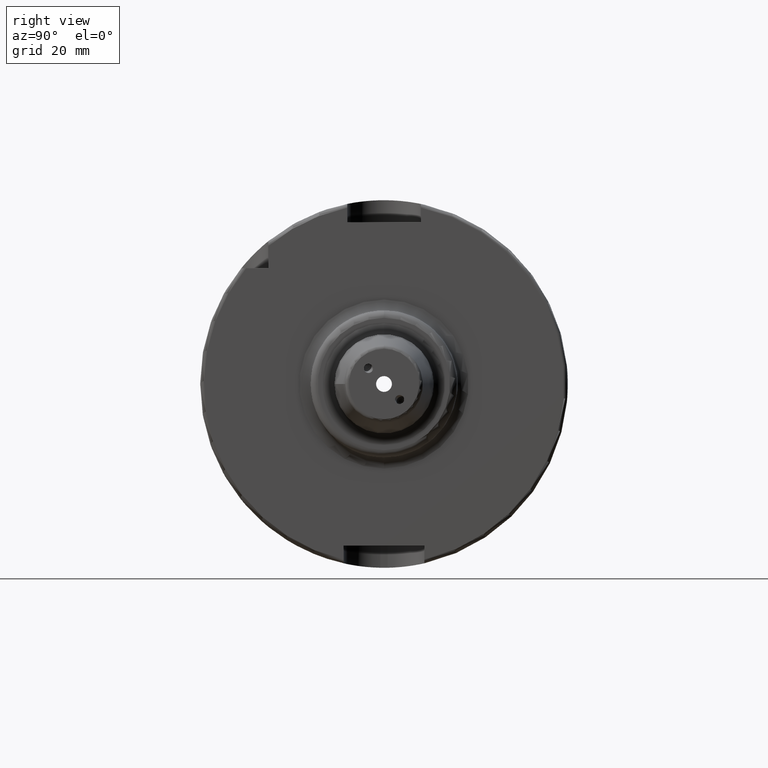
[diagram: clean part render]
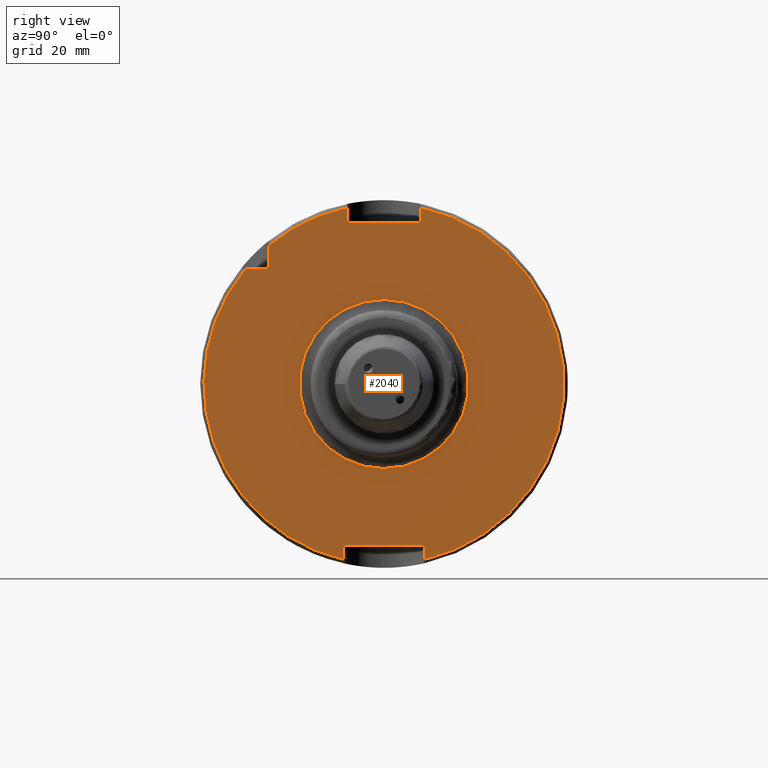
[diagram: same view with one face highlighted and labeled with its STEP entity id]
A machine part, right view. The second image highlights one B-rep face of the part: STEP entity #2040.
In plain terms, the highlighted planar face has unit normal (1, 0, 0).
Its self-contained STEP definition (entity closure, byte-faithful):
#89=FACE_BOUND('',#354,.T.);
#101=PLANE('',#2208);
#226=FACE_OUTER_BOUND('',#353,.T.);
#353=EDGE_LOOP('',(#1418,#1419,#1420,#1421,#1422,#1423,#1424,#1425,#1426,
#1427,#1428));
#354=EDGE_LOOP('',(#1429));
#480=LINE('',#3156,#588);
#481=LINE('',#3160,#589);
#482=LINE('',#3162,#590);
#483=LINE('',#3164,#591);
#484=LINE('',#3168,#592);
#485=LINE('',#3170,#593);
#486=LINE('',#3172,#594);
#487=LINE('',#3175,#595);
#588=VECTOR('',#2523,10.);
#589=VECTOR('',#2526,10.);
#590=VECTOR('',#2527,10.);
#591=VECTOR('',#2528,10.);
#592=VECTOR('',#2531,10.);
#593=VECTOR('',#2532,10.);
#594=VECTOR('',#2533,10.);
#595=VECTOR('',#2536,10.);
#708=CIRCLE('',#2207,23.);
#709=CIRCLE('',#2209,49.);
#710=CIRCLE('',#2210,49.);
#711=CIRCLE('',#2211,49.);
#846=VERTEX_POINT('',#3150);
#847=VERTEX_POINT('',#3154);
#848=VERTEX_POINT('',#3155);
#849=VERTEX_POINT('',#3157);
#850=VERTEX_POINT('',#3159);
#851=VERTEX_POINT('',#3161);
#852=VERTEX_POINT('',#3163);
#853=VERTEX_POINT('',#3165);
#854=VERTEX_POINT('',#3167);
#855=VERTEX_POINT('',#3169);
#856=VERTEX_POINT('',#3171);
#857=VERTEX_POINT('',#3173);
#1066=EDGE_CURVE('',#846,#846,#708,.T.);
#1067=EDGE_CURVE('',#847,#848,#480,.T.);
#1068=EDGE_CURVE('',#848,#849,#709,.T.);
#1069=EDGE_CURVE('',#849,#850,#481,.T.);
#1070=EDGE_CURVE('',#850,#851,#482,.T.);
#1071=EDGE_CURVE('',#851,#852,#483,.T.);
#1072=EDGE_CURVE('',#852,#853,#710,.T.);
#1073=EDGE_CURVE('',#853,#854,#484,.T.);
#1074=EDGE_CURVE('',#854,#855,#485,.T.);
#1075=EDGE_CURVE('',#855,#856,#486,.T.);
#1076=EDGE_CURVE('',#856,#857,#711,.T.);
#1077=EDGE_CURVE('',#857,#847,#487,.T.);
#1418=ORIENTED_EDGE('',*,*,#1067,.T.);
#1419=ORIENTED_EDGE('',*,*,#1068,.T.);
#1420=ORIENTED_EDGE('',*,*,#1069,.T.);
#1421=ORIENTED_EDGE('',*,*,#1070,.T.);
#1422=ORIENTED_EDGE('',*,*,#1071,.T.);
#1423=ORIENTED_EDGE('',*,*,#1072,.T.);
#1424=ORIENTED_EDGE('',*,*,#1073,.T.);
#1425=ORIENTED_EDGE('',*,*,#1074,.T.);
#1426=ORIENTED_EDGE('',*,*,#1075,.T.);
#1427=ORIENTED_EDGE('',*,*,#1076,.T.);
#1428=ORIENTED_EDGE('',*,*,#1077,.T.);
#1429=ORIENTED_EDGE('',*,*,#1066,.F.);
#2040=ADVANCED_FACE('',(#226,#89),#101,.T.);
#2207=AXIS2_PLACEMENT_3D('',#3152,#2519,#2520);
#2208=AXIS2_PLACEMENT_3D('',#3153,#2521,#2522);
#2209=AXIS2_PLACEMENT_3D('',#3158,#2524,#2525);
#2210=AXIS2_PLACEMENT_3D('',#3166,#2529,#2530);
#2211=AXIS2_PLACEMENT_3D('',#3174,#2534,#2535);
#2519=DIRECTION('center_axis',(1.,0.,0.));
#2520=DIRECTION('ref_axis',(0.,-1.,-1.22464679914735E-16));
#2521=DIRECTION('center_axis',(1.,0.,0.));
#2522=DIRECTION('ref_axis',(0.,0.,-1.));
#2523=DIRECTION('',(0.,-1.,0.));
#2524=DIRECTION('center_axis',(1.,0.,0.));
#2525=DIRECTION('ref_axis',(0.,0.,-1.));
#2526=DIRECTION('',(0.,0.,1.));
#2527=DIRECTION('',(0.,1.,0.));
#2528=DIRECTION('',(0.,0.,-1.));
#2529=DIRECTION('center_axis',(1.,0.,0.));
#2530=DIRECTION('ref_axis',(0.,0.,-1.));
#2531=DIRECTION('',(0.,0.,-1.));
#2532=DIRECTION('',(0.,-1.,0.));
#2533=DIRECTION('',(0.,0.,1.));
#2534=DIRECTION('center_axis',(1.,0.,0.));
#2535=DIRECTION('ref_axis',(0.,0.,-1.));
#2536=DIRECTION('',(0.,0.,-1.));
#3150=CARTESIAN_POINT('',(29.,-2.81668763803891E-15,-23.));
#3152=CARTESIAN_POINT('Origin',(29.,0.,0.));
#3153=CARTESIAN_POINT('Origin',(29.,0.,0.));
#3154=CARTESIAN_POINT('',(29.,-31.5,31.5));
#3155=CARTESIAN_POINT('',(29.,-37.5333185316726,31.5));
#3156=CARTESIAN_POINT('',(29.,-18.25,31.5));
#3157=CARTESIAN_POINT('',(29.,-11.,-47.7493455452533));
#3158=CARTESIAN_POINT('Origin',(29.,0.,0.));
#3159=CARTESIAN_POINT('',(29.,-11.,-44.));
#3160=CARTESIAN_POINT('',(29.,-11.,-22.));
#3161=CARTESIAN_POINT('',(29.,11.,-44.));
#3162=CARTESIAN_POINT('',(29.,-5.55111512312578E-16,-44.));
#3163=CARTESIAN_POINT('',(29.,11.,-47.7493455452533));
#3164=CARTESIAN_POINT('',(29.,11.,-22.));
#3165=CARTESIAN_POINT('',(29.,10.,47.9687398208458));
#3166=CARTESIAN_POINT('Origin',(29.,0.,0.));
#3167=CARTESIAN_POINT('',(29.,10.,44.));
#3168=CARTESIAN_POINT('',(29.,10.,22.));
#3169=CARTESIAN_POINT('',(29.,-10.,44.));
#3170=CARTESIAN_POINT('',(29.,0.,44.));
#3171=CARTESIAN_POINT('',(29.,-10.,47.9687398208458));
#3172=CARTESIAN_POINT('',(29.,-10.,22.));
#3173=CARTESIAN_POINT('',(29.,-31.5,37.5333185316726));
#3174=CARTESIAN_POINT('Origin',(29.,0.,0.));
#3175=CARTESIAN_POINT('',(29.,-31.5,15.75));